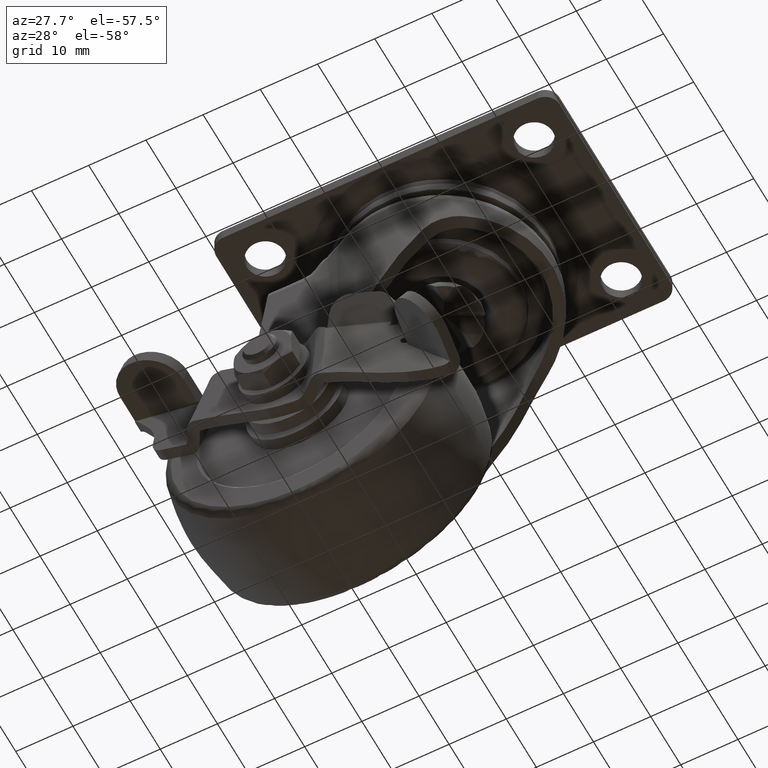
[diagram: clean part render]
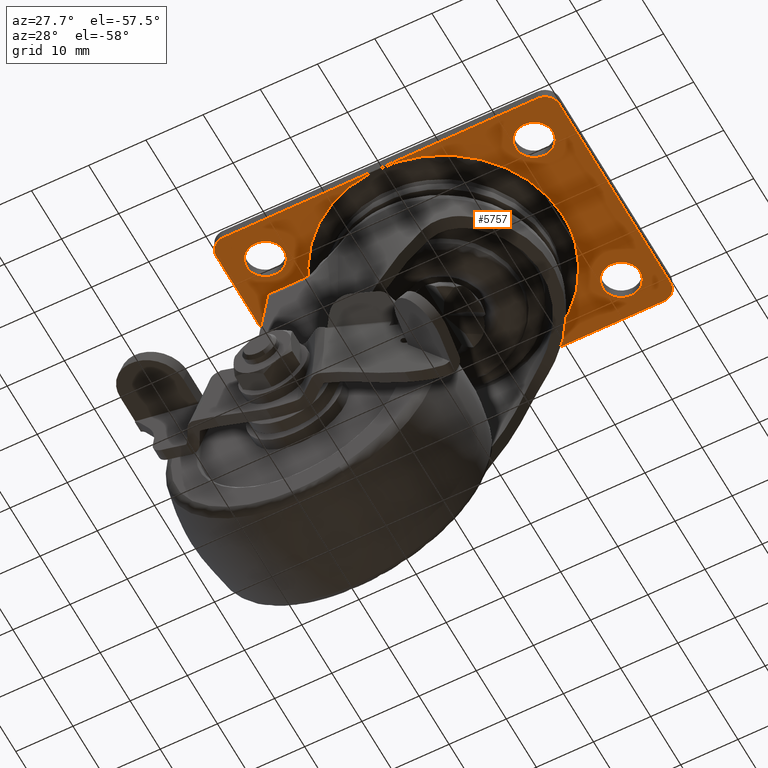
[diagram: same view with one face highlighted and labeled with its STEP entity id]
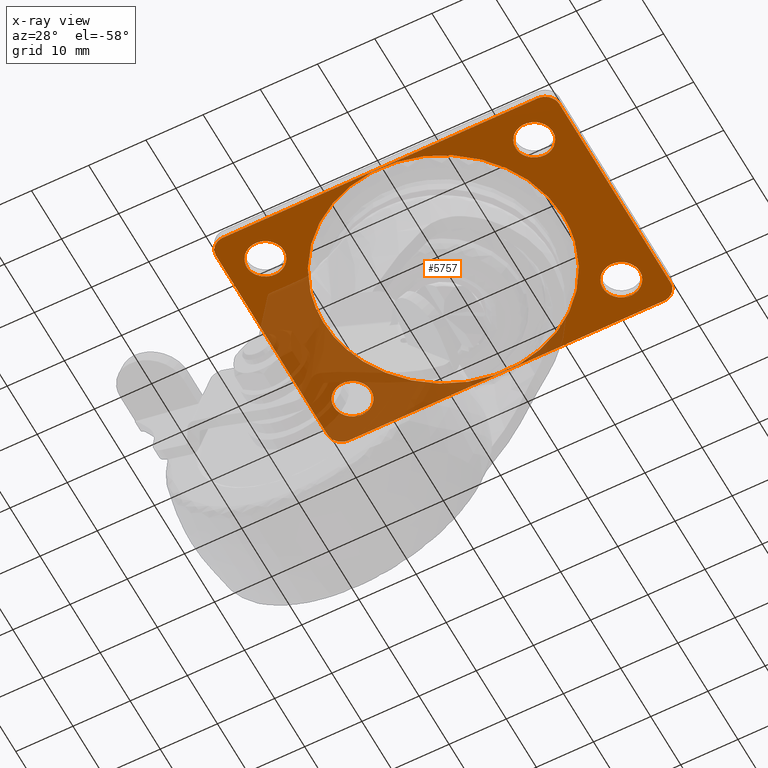
[diagram: x-ray of the same camera — body ghosted, the highlighted face saturated]
A machine part, auxiliary view. The second image highlights one B-rep face of the part: STEP entity #5757.
The next image is the same camera in x-ray: the body ghosted, the highlighted face saturated — about 33% of this face is hidden behind the body in this view.
In plain terms, the highlighted face is a freeform B-spline surface patch.
Its self-contained STEP definition (entity closure, byte-faithful):
#3788=CARTESIAN_POINT('',(-23.301599246305329,17.743938094858450,-1.999963000000160));
#3789=VERTEX_POINT('',#3788);
#3795=CARTESIAN_POINT('',(-20.250007000000000,14.500000000000000,-1.999963000000160));
#3796=VERTEX_POINT('',#3795);
#3797=CARTESIAN_POINT('',(-20.250007000000000,14.500000000000000,-1.999963000000160));
#3798=CARTESIAN_POINT('',(-20.250007000000000,17.557294717053782,-1.999963000000160));
#3799=CARTESIAN_POINT('',(-23.301599246305337,17.743938094858450,-1.999963000000160));
#3807=(BOUNDED_CURVE()B_SPLINE_CURVE(2,(#3797,#3798,#3799),.UNSPECIFIED.,.F.,.U.)B_SPLINE_CURVE_WITH_KNOTS((3,3),(0.500000000000000,0.739332962220014),.UNSPECIFIED.)CURVE()GEOMETRIC_REPRESENTATION_ITEM()RATIONAL_B_SPLINE_CURVE((1.0,0.719603993308887,0.976072041626148))REPRESENTATION_ITEM(''));
#3808=EDGE_CURVE('',#3796,#3789,#3807,.T.);
#3810=CARTESIAN_POINT('',(-23.883618262824260,11.272719039340650,-1.999963000000160));
#3811=VERTEX_POINT('',#3810);
#3812=CARTESIAN_POINT('',(-23.883618262824253,11.272719039340650,-1.999963000000160));
#3813=CARTESIAN_POINT('',(-23.692485389060511,11.250000000000004,-1.999963000000161));
#3814=CARTESIAN_POINT('',(-23.500007000000000,11.250000000000000,-1.999963000000160));
#3815=CARTESIAN_POINT('',(-20.250007000000007,11.250000000000000,-1.999963000000160));
#3816=CARTESIAN_POINT('',(-20.250007000000000,14.500000000000000,-1.999963000000160));
#3824=(BOUNDED_CURVE()B_SPLINE_CURVE(2,(#3812,#3813,#3814,#3815,#3816),.UNSPECIFIED.,.F.,.U.)B_SPLINE_CURVE_WITH_KNOTS((3,2,3),(0.229562473495766,0.250000000000000,0.500000000000000),.UNSPECIFIED.)CURVE()GEOMETRIC_REPRESENTATION_ITEM()RATIONAL_B_SPLINE_CURVE((0.956026754148924,0.976055948310359,1.0,0.707106781186547,1.0))REPRESENTATION_ITEM(''));
#3825=EDGE_CURVE('',#3811,#3796,#3824,.T.);
#3869=CARTESIAN_POINT('',(-26.750007000000000,14.500000000000000,-1.999963000000160));
#3870=VERTEX_POINT('',#3869);
#3871=CARTESIAN_POINT('',(-26.750007000000000,14.500000000000000,-1.999963000000160));
#3872=CARTESIAN_POINT('',(-26.750006999999993,11.613432790999958,-1.999963000000161));
#3873=CARTESIAN_POINT('',(-23.883618262824253,11.272719039340650,-1.999963000000160));
#3881=(BOUNDED_CURVE()B_SPLINE_CURVE(2,(#3871,#3872,#3873),.UNSPECIFIED.,.F.,.U.)B_SPLINE_CURVE_WITH_KNOTS((3,3),(0.0,0.229562473495766),.UNSPECIFIED.)CURVE()GEOMETRIC_REPRESENTATION_ITEM()RATIONAL_B_SPLINE_CURVE((1.0,0.731050832876189,0.956026754148924))REPRESENTATION_ITEM(''));
#3882=EDGE_CURVE('',#3870,#3811,#3881,.T.);
#3884=CARTESIAN_POINT('',(-23.301599246305326,17.743938094858446,-1.999963000000160));
#3885=CARTESIAN_POINT('',(-23.400710519072621,17.750000000000011,-1.999963000000160));
#3886=CARTESIAN_POINT('',(-23.500007000000000,17.750000000000000,-1.999963000000160));
#3887=CARTESIAN_POINT('',(-26.750006999999997,17.750000000000004,-1.999963000000160));
#3888=CARTESIAN_POINT('',(-26.750007000000000,14.500000000000000,-1.999963000000160));
#3896=(BOUNDED_CURVE()B_SPLINE_CURVE(2,(#3884,#3885,#3886,#3887,#3888),.UNSPECIFIED.,.F.,.U.)B_SPLINE_CURVE_WITH_KNOTS((3,2,3),(0.739332962220013,0.750000000000000,1.0),.UNSPECIFIED.)CURVE()GEOMETRIC_REPRESENTATION_ITEM()RATIONAL_B_SPLINE_CURVE((0.976072041626147,0.987502787877659,1.0,0.707106781186547,1.0))REPRESENTATION_ITEM(''));
#3897=EDGE_CURVE('',#3789,#3870,#3896,.T.);
#3974=CARTESIAN_POINT('',(23.698400753694671,17.743938094858450,-1.999963000000160));
#3975=VERTEX_POINT('',#3974);
#3981=CARTESIAN_POINT('',(26.749993000000000,14.500000000000000,-1.999963000000160));
#3982=VERTEX_POINT('',#3981);
#3983=CARTESIAN_POINT('',(26.749993000000000,14.500000000000000,-1.999963000000160));
#3984=CARTESIAN_POINT('',(26.749993000000000,17.557294717053782,-1.999963000000160));
#3985=CARTESIAN_POINT('',(23.698400753694667,17.743938094858450,-1.999963000000160));
#3993=(BOUNDED_CURVE()B_SPLINE_CURVE(2,(#3983,#3984,#3985),.UNSPECIFIED.,.F.,.U.)B_SPLINE_CURVE_WITH_KNOTS((3,3),(0.500000000000000,0.739332962220014),.UNSPECIFIED.)CURVE()GEOMETRIC_REPRESENTATION_ITEM()RATIONAL_B_SPLINE_CURVE((1.0,0.719603993308887,0.976072041626148))REPRESENTATION_ITEM(''));
#3994=EDGE_CURVE('',#3982,#3975,#3993,.T.);
#3996=CARTESIAN_POINT('',(23.116381737175740,11.272719039340650,-1.999963000000160));
#3997=VERTEX_POINT('',#3996);
#3998=CARTESIAN_POINT('',(23.116381737175743,11.272719039340654,-1.999963000000160));
#3999=CARTESIAN_POINT('',(23.307514610939492,11.250000000000004,-1.999963000000160));
#4000=CARTESIAN_POINT('',(23.499993000000000,11.250000000000000,-1.999963000000160));
#4001=CARTESIAN_POINT('',(26.749993000000003,11.250000000000000,-1.999963000000160));
#4002=CARTESIAN_POINT('',(26.749993000000000,14.500000000000000,-1.999963000000160));
#4010=(BOUNDED_CURVE()B_SPLINE_CURVE(2,(#3998,#3999,#4000,#4001,#4002),.UNSPECIFIED.,.F.,.U.)B_SPLINE_CURVE_WITH_KNOTS((3,2,3),(0.229562473495766,0.250000000000000,0.500000000000000),.UNSPECIFIED.)CURVE()GEOMETRIC_REPRESENTATION_ITEM()RATIONAL_B_SPLINE_CURVE((0.956026754148924,0.976055948310359,1.0,0.707106781186547,1.0))REPRESENTATION_ITEM(''));
#4011=EDGE_CURVE('',#3997,#3982,#4010,.T.);
#4055=CARTESIAN_POINT('',(20.249993000000000,14.500000000000000,-1.999963000000160));
#4056=VERTEX_POINT('',#4055);
#4057=CARTESIAN_POINT('',(20.249993000000000,14.500000000000000,-1.999963000000160));
#4058=CARTESIAN_POINT('',(20.249993000000003,11.613432790999960,-1.999963000000161));
#4059=CARTESIAN_POINT('',(23.116381737175740,11.272719039340652,-1.999963000000161));
#4067=(BOUNDED_CURVE()B_SPLINE_CURVE(2,(#4057,#4058,#4059),.UNSPECIFIED.,.F.,.U.)B_SPLINE_CURVE_WITH_KNOTS((3,3),(0.0,0.229562473495766),.UNSPECIFIED.)CURVE()GEOMETRIC_REPRESENTATION_ITEM()RATIONAL_B_SPLINE_CURVE((1.0,0.731050832876189,0.956026754148924))REPRESENTATION_ITEM(''));
#4068=EDGE_CURVE('',#4056,#3997,#4067,.T.);
#4070=CARTESIAN_POINT('',(23.698400753694674,17.743938094858446,-1.999963000000160));
#4071=CARTESIAN_POINT('',(23.599289480927375,17.750000000000011,-1.999963000000160));
#4072=CARTESIAN_POINT('',(23.499993000000000,17.750000000000000,-1.999963000000160));
#4073=CARTESIAN_POINT('',(20.249993000000003,17.750000000000004,-1.999963000000160));
#4074=CARTESIAN_POINT('',(20.249993000000000,14.500000000000000,-1.999963000000160));
#4082=(BOUNDED_CURVE()B_SPLINE_CURVE(2,(#4070,#4071,#4072,#4073,#4074),.UNSPECIFIED.,.F.,.U.)B_SPLINE_CURVE_WITH_KNOTS((3,2,3),(0.739332962220013,0.750000000000000,1.0),.UNSPECIFIED.)CURVE()GEOMETRIC_REPRESENTATION_ITEM()RATIONAL_B_SPLINE_CURVE((0.976072041626147,0.987502787877659,1.0,0.707106781186547,1.0))REPRESENTATION_ITEM(''));
#4083=EDGE_CURVE('',#3975,#4056,#4082,.T.);
#4355=CARTESIAN_POINT('',(-23.301599246305329,-11.256061905141561,-1.999963000000160));
#4356=VERTEX_POINT('',#4355);
#4362=CARTESIAN_POINT('',(-20.250007000000000,-14.500000000000000,-1.999963000000160));
#4363=VERTEX_POINT('',#4362);
#4364=CARTESIAN_POINT('',(-20.250007000000000,-14.500000000000000,-1.999963000000160));
#4365=CARTESIAN_POINT('',(-20.250007000000000,-11.442705282946225,-1.999963000000160));
#4366=CARTESIAN_POINT('',(-23.301599246305337,-11.256061905141554,-1.999963000000160));
#4374=(BOUNDED_CURVE()B_SPLINE_CURVE(2,(#4364,#4365,#4366),.UNSPECIFIED.,.F.,.U.)B_SPLINE_CURVE_WITH_KNOTS((3,3),(0.500000000000000,0.739332962220014),.UNSPECIFIED.)CURVE()GEOMETRIC_REPRESENTATION_ITEM()RATIONAL_B_SPLINE_CURVE((1.0,0.719603993308887,0.976072041626148))REPRESENTATION_ITEM(''));
#4375=EDGE_CURVE('',#4363,#4356,#4374,.T.);
#4377=CARTESIAN_POINT('',(-23.883618262824260,-17.727280960659360,-1.999963000000160));
#4378=VERTEX_POINT('',#4377);
#4379=CARTESIAN_POINT('',(-23.883618262824257,-17.727280960659350,-1.999963000000161));
#4380=CARTESIAN_POINT('',(-23.692485389060511,-17.749999999999996,-1.999963000000159));
#4381=CARTESIAN_POINT('',(-23.500007000000000,-17.750000000000000,-1.999963000000160));
#4382=CARTESIAN_POINT('',(-20.250007000000007,-17.750000000000004,-1.999963000000160));
#4383=CARTESIAN_POINT('',(-20.250007000000000,-14.500000000000000,-1.999963000000160));
#4391=(BOUNDED_CURVE()B_SPLINE_CURVE(2,(#4379,#4380,#4381,#4382,#4383),.UNSPECIFIED.,.F.,.U.)B_SPLINE_CURVE_WITH_KNOTS((3,2,3),(0.229562473495766,0.250000000000000,0.500000000000000),.UNSPECIFIED.)CURVE()GEOMETRIC_REPRESENTATION_ITEM()RATIONAL_B_SPLINE_CURVE((0.956026754148924,0.976055948310359,1.0,0.707106781186547,1.0))REPRESENTATION_ITEM(''));
#4392=EDGE_CURVE('',#4378,#4363,#4391,.T.);
#4436=CARTESIAN_POINT('',(-26.750007000000000,-14.500000000000000,-1.999963000000160));
#4437=VERTEX_POINT('',#4436);
#4438=CARTESIAN_POINT('',(-26.750007000000000,-14.500000000000000,-1.999963000000160));
#4439=CARTESIAN_POINT('',(-26.750006999999993,-17.386567209000042,-1.999963000000161));
#4440=CARTESIAN_POINT('',(-23.883618262824253,-17.727280960659360,-1.999963000000160));
#4448=(BOUNDED_CURVE()B_SPLINE_CURVE(2,(#4438,#4439,#4440),.UNSPECIFIED.,.F.,.U.)B_SPLINE_CURVE_WITH_KNOTS((3,3),(0.0,0.229562473495766),.UNSPECIFIED.)CURVE()GEOMETRIC_REPRESENTATION_ITEM()RATIONAL_B_SPLINE_CURVE((1.0,0.731050832876189,0.956026754148924))REPRESENTATION_ITEM(''));
#4449=EDGE_CURVE('',#4437,#4378,#4448,.T.);
#4451=CARTESIAN_POINT('',(-23.301599246305326,-11.256061905141555,-1.999963000000160));
#4452=CARTESIAN_POINT('',(-23.400710519072621,-11.250000000000004,-1.999963000000160));
#4453=CARTESIAN_POINT('',(-23.500007000000000,-11.250000000000000,-1.999963000000160));
#4454=CARTESIAN_POINT('',(-26.750006999999997,-11.250000000000000,-1.999963000000160));
#4455=CARTESIAN_POINT('',(-26.750007000000000,-14.500000000000000,-1.999963000000160));
#4463=(BOUNDED_CURVE()B_SPLINE_CURVE(2,(#4451,#4452,#4453,#4454,#4455),.UNSPECIFIED.,.F.,.U.)B_SPLINE_CURVE_WITH_KNOTS((3,2,3),(0.739332962220013,0.750000000000000,1.0),.UNSPECIFIED.)CURVE()GEOMETRIC_REPRESENTATION_ITEM()RATIONAL_B_SPLINE_CURVE((0.976072041626147,0.987502787877659,1.0,0.707106781186547,1.0))REPRESENTATION_ITEM(''));
#4464=EDGE_CURVE('',#4356,#4437,#4463,.T.);
#4541=CARTESIAN_POINT('',(23.698400753694671,-11.256061905141561,-1.999963000000161));
#4542=VERTEX_POINT('',#4541);
#4548=CARTESIAN_POINT('',(26.749993000000000,-14.500000000000000,-1.999963000000160));
#4549=VERTEX_POINT('',#4548);
#4550=CARTESIAN_POINT('',(26.749993000000000,-14.500000000000000,-1.999963000000160));
#4551=CARTESIAN_POINT('',(26.749993000000000,-11.442705282946225,-1.999963000000160));
#4552=CARTESIAN_POINT('',(23.698400753694667,-11.256061905141554,-1.999963000000160));
#4560=(BOUNDED_CURVE()B_SPLINE_CURVE(2,(#4550,#4551,#4552),.UNSPECIFIED.,.F.,.U.)B_SPLINE_CURVE_WITH_KNOTS((3,3),(0.500000000000000,0.739332962220014),.UNSPECIFIED.)CURVE()GEOMETRIC_REPRESENTATION_ITEM()RATIONAL_B_SPLINE_CURVE((1.0,0.719603993308887,0.976072041626148))REPRESENTATION_ITEM(''));
#4561=EDGE_CURVE('',#4549,#4542,#4560,.T.);
#4563=CARTESIAN_POINT('',(23.116381737175740,-17.727280960659360,-1.999963000000160));
#4564=VERTEX_POINT('',#4563);
#4565=CARTESIAN_POINT('',(23.116381737175740,-17.727280960659357,-1.999963000000160));
#4566=CARTESIAN_POINT('',(23.307514610939492,-17.750000000000000,-1.999963000000160));
#4567=CARTESIAN_POINT('',(23.499993000000000,-17.750000000000000,-1.999963000000160));
#4568=CARTESIAN_POINT('',(26.749993000000003,-17.750000000000004,-1.999963000000160));
#4569=CARTESIAN_POINT('',(26.749993000000000,-14.500000000000000,-1.999963000000160));
#4577=(BOUNDED_CURVE()B_SPLINE_CURVE(2,(#4565,#4566,#4567,#4568,#4569),.UNSPECIFIED.,.F.,.U.)B_SPLINE_CURVE_WITH_KNOTS((3,2,3),(0.229562473495766,0.250000000000000,0.500000000000000),.UNSPECIFIED.)CURVE()GEOMETRIC_REPRESENTATION_ITEM()RATIONAL_B_SPLINE_CURVE((0.956026754148924,0.976055948310359,1.0,0.707106781186547,1.0))REPRESENTATION_ITEM(''));
#4578=EDGE_CURVE('',#4564,#4549,#4577,.T.);
#4622=CARTESIAN_POINT('',(20.249993000000000,-14.500000000000000,-1.999963000000160));
#4623=VERTEX_POINT('',#4622);
#4624=CARTESIAN_POINT('',(20.249993000000000,-14.500000000000000,-1.999963000000160));
#4625=CARTESIAN_POINT('',(20.249993000000000,-17.386567209000038,-1.999963000000160));
#4626=CARTESIAN_POINT('',(23.116381737175736,-17.727280960659353,-1.999963000000160));
#4634=(BOUNDED_CURVE()B_SPLINE_CURVE(2,(#4624,#4625,#4626),.UNSPECIFIED.,.F.,.U.)B_SPLINE_CURVE_WITH_KNOTS((3,3),(0.0,0.229562473495766),.UNSPECIFIED.)CURVE()GEOMETRIC_REPRESENTATION_ITEM()RATIONAL_B_SPLINE_CURVE((1.0,0.731050832876189,0.956026754148924))REPRESENTATION_ITEM(''));
#4635=EDGE_CURVE('',#4623,#4564,#4634,.T.);
#4637=CARTESIAN_POINT('',(23.698400753694674,-11.256061905141561,-1.999963000000161));
#4638=CARTESIAN_POINT('',(23.599289480927382,-11.250000000000002,-1.999963000000160));
#4639=CARTESIAN_POINT('',(23.499993000000000,-11.250000000000000,-1.999963000000160));
#4640=CARTESIAN_POINT('',(20.249993000000003,-11.250000000000000,-1.999963000000160));
#4641=CARTESIAN_POINT('',(20.249993000000000,-14.500000000000000,-1.999963000000160));
#4649=(BOUNDED_CURVE()B_SPLINE_CURVE(2,(#4637,#4638,#4639,#4640,#4641),.UNSPECIFIED.,.F.,.U.)B_SPLINE_CURVE_WITH_KNOTS((3,2,3),(0.739332962220013,0.750000000000000,1.0),.UNSPECIFIED.)CURVE()GEOMETRIC_REPRESENTATION_ITEM()RATIONAL_B_SPLINE_CURVE((0.976072041626147,0.987502787877659,1.0,0.707106781186547,1.0))REPRESENTATION_ITEM(''));
#4650=EDGE_CURVE('',#4542,#4623,#4649,.T.);
#5285=CARTESIAN_POINT('',(10.236818833725369,18.317631878213419,-1.999963000041348));
#5286=VERTEX_POINT('',#5285);
#5300=CARTESIAN_POINT('',(20.983996222386399,7.105427E-015,-1.999963000000205));
#5301=VERTEX_POINT('',#5300);
#5302=CARTESIAN_POINT('',(10.236818833725366,18.317631878213415,-1.999963000041348));
#5303=CARTESIAN_POINT('',(20.983996222386406,12.311565775706182,-1.999963000000204));
#5304=CARTESIAN_POINT('',(20.983996222386399,7.105427E-015,-1.999963000000205));
#5312=(BOUNDED_CURVE()B_SPLINE_CURVE(2,(#5302,#5303,#5304),.UNSPECIFIED.,.F.,.U.)B_SPLINE_CURVE_WITH_KNOTS((3,3),(0.333121442957282,0.500000000000000),.UNSPECIFIED.)CURVE()GEOMETRIC_REPRESENTATION_ITEM()RATIONAL_B_SPLINE_CURVE((0.869991153566823,0.804489609107256,1.0))REPRESENTATION_ITEM(''));
#5313=EDGE_CURVE('',#5286,#5301,#5312,.T.);
#5315=CARTESIAN_POINT('',(-20.983996222386399,7.105427E-015,-1.999963000000205));
#5316=VERTEX_POINT('',#5315);
#5317=CARTESIAN_POINT('',(20.983996222386399,7.105427E-015,-1.999963000000205));
#5318=CARTESIAN_POINT('',(20.983996222386402,-20.983996222386388,-1.999963000000205));
#5319=CARTESIAN_POINT('',(0.0,-20.983996222386391,-1.999963000000205));
#5320=CARTESIAN_POINT('',(-20.983996222386402,-20.983996222386388,-1.999963000000205));
#5321=CARTESIAN_POINT('',(-20.983996222386399,7.105427E-015,-1.999963000000205));
#5329=(BOUNDED_CURVE()B_SPLINE_CURVE(2,(#5317,#5318,#5319,#5320,#5321),.UNSPECIFIED.,.F.,.U.)B_SPLINE_CURVE_WITH_KNOTS((3,2,3),(0.500000000000000,0.750000000000000,1.0),.UNSPECIFIED.)CURVE()GEOMETRIC_REPRESENTATION_ITEM()RATIONAL_B_SPLINE_CURVE((1.0,0.707106781186547,1.0,0.707106781186547,1.0))REPRESENTATION_ITEM(''));
#5330=EDGE_CURVE('',#5301,#5316,#5329,.T.);
#5332=CARTESIAN_POINT('',(-18.873116400639208,9.172435596194667,-1.999963001071962));
#5333=VERTEX_POINT('',#5332);
#5334=CARTESIAN_POINT('',(-20.983996222386399,7.105427E-015,-1.999963000000205));
#5335=CARTESIAN_POINT('',(-20.983996222386402,4.829109316831011,-1.999963000000205));
#5336=CARTESIAN_POINT('',(-18.873116400639212,9.172435596194667,-1.999963001071962));
#5344=(BOUNDED_CURVE()B_SPLINE_CURVE(2,(#5334,#5335,#5336),.UNSPECIFIED.,.F.,.U.)B_SPLINE_CURVE_WITH_KNOTS((3,3),(0.0,0.074283295451411),.UNSPECIFIED.)CURVE()GEOMETRIC_REPRESENTATION_ITEM()RATIONAL_B_SPLINE_CURVE((1.0,0.912971705964662,0.877661399756998))REPRESENTATION_ITEM(''));
#5345=EDGE_CURVE('',#5316,#5333,#5344,.T.);
#5434=CARTESIAN_POINT('',(-18.873116400639212,9.172435596194667,-1.999963001071962));
#5435=CARTESIAN_POINT('',(-13.132634710853610,20.983996222386399,-1.999963000000205));
#5436=CARTESIAN_POINT('',(0.0,20.983996222386409,-1.999963000000205));
#5437=CARTESIAN_POINT('',(5.465660791143042,20.983996222386413,-1.999963000000205));
#5438=CARTESIAN_POINT('',(10.236818833725366,18.317631878213415,-1.999963000041348));
#5446=(BOUNDED_CURVE()B_SPLINE_CURVE(2,(#5434,#5435,#5436,#5437,#5438),.UNSPECIFIED.,.F.,.U.)B_SPLINE_CURVE_WITH_KNOTS((3,2,3),(0.074283295451411,0.250000000000000,0.333121442957282),.UNSPECIFIED.)CURVE()GEOMETRIC_REPRESENTATION_ITEM()RATIONAL_B_SPLINE_CURVE((0.877661399756998,0.794135075221886,1.0,0.902617172079292,0.869991153566823))REPRESENTATION_ITEM(''));
#5447=EDGE_CURVE('',#5333,#5286,#5446,.T.);
#5632=CARTESIAN_POINT('',(-32.997008010182597,23.097899918595861,-1.999963000000205));
#5633=CARTESIAN_POINT('',(32.996994546624308,23.097899918595861,-1.999963000000205));
#5634=CARTESIAN_POINT('',(-32.997008010182597,-23.097901045123638,-1.999963000000205));
#5635=CARTESIAN_POINT('',(32.996994546624308,-23.097901045123638,-1.999963000000205));
#5636=B_SPLINE_SURFACE_WITH_KNOTS('',1,1,((#5632,#5634),(#5633,#5635)),.UNSPECIFIED.,.F.,.F.,.U.,(2,2),(2,2),(0.0,65.994002556806919),(0.0,46.195800963719492),.UNSPECIFIED.);
#5637=CARTESIAN_POINT('',(29.999993000000000,18.500000000000000,-1.999963000000160));
#5638=VERTEX_POINT('',#5637);
#5639=CARTESIAN_POINT('',(27.499993000000000,21.0,-1.999963000000160));
#5640=VERTEX_POINT('',#5639);
#5641=CARTESIAN_POINT('',(29.999993000000000,18.500000000000000,-1.999963000000160));
#5642=CARTESIAN_POINT('',(29.999993000000000,21.000000000000004,-1.999963000000159));
#5643=CARTESIAN_POINT('',(27.499993000000000,21.0,-1.999963000000160));
#5651=(BOUNDED_CURVE()B_SPLINE_CURVE(2,(#5641,#5642,#5643),.UNSPECIFIED.,.F.,.U.)CURVE()GEOMETRIC_REPRESENTATION_ITEM()QUASI_UNIFORM_CURVE()RATIONAL_B_SPLINE_CURVE((1.0,0.707106781186548,1.0))REPRESENTATION_ITEM(''));
#5652=EDGE_CURVE('',#5638,#5640,#5651,.T.);
#5653=ORIENTED_EDGE('',*,*,#5652,.F.);
#5654=CARTESIAN_POINT('',(29.999993000000000,-18.500000000000000,-1.999963000000160));
#5655=VERTEX_POINT('',#5654);
#5656=CARTESIAN_POINT('',(29.999993000000000,-18.500000000000000,-1.999963000000160));
#5657=CARTESIAN_POINT('',(29.999993000000000,18.500000000000000,-1.999963000000160));
#5658=QUASI_UNIFORM_CURVE('',1,(#5656,#5657),.UNSPECIFIED.,.F.,.U.);
#5659=EDGE_CURVE('',#5655,#5638,#5658,.T.);
#5660=ORIENTED_EDGE('',*,*,#5659,.F.);
#5661=CARTESIAN_POINT('',(27.499993000000000,-21.0,-1.999963000000160));
#5662=VERTEX_POINT('',#5661);
#5663=CARTESIAN_POINT('',(27.499993000000000,-21.0,-1.999963000000160));
#5664=CARTESIAN_POINT('',(29.999993000000000,-21.000000000000004,-1.999963000000159));
#5665=CARTESIAN_POINT('',(29.999993000000000,-18.500000000000000,-1.999963000000160));
#5673=(BOUNDED_CURVE()B_SPLINE_CURVE(2,(#5663,#5664,#5665),.UNSPECIFIED.,.F.,.U.)CURVE()GEOMETRIC_REPRESENTATION_ITEM()QUASI_UNIFORM_CURVE()RATIONAL_B_SPLINE_CURVE((1.0,0.707106781186548,1.0))REPRESENTATION_ITEM(''));
#5674=EDGE_CURVE('',#5662,#5655,#5673,.T.);
#5675=ORIENTED_EDGE('',*,*,#5674,.F.);
#5676=CARTESIAN_POINT('',(-27.500007000000100,-21.0,-1.999963000000160));
#5677=VERTEX_POINT('',#5676);
#5678=CARTESIAN_POINT('',(-27.500007000000100,-21.0,-1.999963000000160));
#5679=CARTESIAN_POINT('',(27.499993000000000,-21.0,-1.999963000000160));
#5680=QUASI_UNIFORM_CURVE('',1,(#5678,#5679),.UNSPECIFIED.,.F.,.U.);
#5681=EDGE_CURVE('',#5677,#5662,#5680,.T.);
#5682=ORIENTED_EDGE('',*,*,#5681,.F.);
#5683=CARTESIAN_POINT('',(-30.000007000000000,-18.500000000000000,-1.999963000000160));
#5684=VERTEX_POINT('',#5683);
#5685=CARTESIAN_POINT('',(-30.000007000000100,-18.500000000000000,-1.999963000000160));
#5686=CARTESIAN_POINT('',(-30.000007000000107,-21.000000000000004,-1.999963000000159));
#5687=CARTESIAN_POINT('',(-27.500007000000100,-21.0,-1.999963000000160));
#5695=(BOUNDED_CURVE()B_SPLINE_CURVE(2,(#5685,#5686,#5687),.UNSPECIFIED.,.F.,.U.)CURVE()GEOMETRIC_REPRESENTATION_ITEM()QUASI_UNIFORM_CURVE()RATIONAL_B_SPLINE_CURVE((1.0,0.707106781186548,1.0))REPRESENTATION_ITEM(''));
#5696=EDGE_CURVE('',#5684,#5677,#5695,.T.);
#5697=ORIENTED_EDGE('',*,*,#5696,.F.);
#5698=CARTESIAN_POINT('',(-30.000007000000100,18.500000000000000,-1.999963000000160));
#5699=VERTEX_POINT('',#5698);
#5700=CARTESIAN_POINT('',(-30.000007000000100,18.500000000000000,-1.999963000000160));
#5701=CARTESIAN_POINT('',(-30.000007000000000,-18.500000000000000,-1.999963000000160));
#5702=QUASI_UNIFORM_CURVE('',1,(#5700,#5701),.UNSPECIFIED.,.F.,.U.);
#5703=EDGE_CURVE('',#5699,#5684,#5702,.T.);
#5704=ORIENTED_EDGE('',*,*,#5703,.F.);
#5705=CARTESIAN_POINT('',(-27.500007000000100,21.0,-1.999963000000160));
#5706=VERTEX_POINT('',#5705);
#5707=CARTESIAN_POINT('',(-27.500007000000100,21.0,-1.999963000000160));
#5708=CARTESIAN_POINT('',(-30.000007000000107,21.000000000000004,-1.999963000000159));
#5709=CARTESIAN_POINT('',(-30.000007000000100,18.500000000000000,-1.999963000000160));
#5717=(BOUNDED_CURVE()B_SPLINE_CURVE(2,(#5707,#5708,#5709),.UNSPECIFIED.,.F.,.U.)CURVE()GEOMETRIC_REPRESENTATION_ITEM()QUASI_UNIFORM_CURVE()RATIONAL_B_SPLINE_CURVE((1.0,0.707106781186548,1.0))REPRESENTATION_ITEM(''));
#5718=EDGE_CURVE('',#5706,#5699,#5717,.T.);
#5719=ORIENTED_EDGE('',*,*,#5718,.F.);
#5720=CARTESIAN_POINT('',(27.499993000000000,21.0,-1.999963000000160));
#5721=CARTESIAN_POINT('',(-27.500007000000100,21.0,-1.999963000000160));
#5722=QUASI_UNIFORM_CURVE('',1,(#5720,#5721),.UNSPECIFIED.,.F.,.U.);
#5723=EDGE_CURVE('',#5640,#5706,#5722,.T.);
#5724=ORIENTED_EDGE('',*,*,#5723,.F.);
#5725=EDGE_LOOP('',(#5653,#5660,#5675,#5682,#5697,#5704,#5719,#5724));
#5726=FACE_OUTER_BOUND('',#5725,.T.);
#5727=ORIENTED_EDGE('',*,*,#5330,.F.);
#5728=ORIENTED_EDGE('',*,*,#5313,.F.);
#5729=ORIENTED_EDGE('',*,*,#5447,.F.);
#5730=ORIENTED_EDGE('',*,*,#5345,.F.);
#5731=EDGE_LOOP('',(#5727,#5728,#5729,#5730));
#5732=FACE_BOUND('',#5731,.T.);
#5733=ORIENTED_EDGE('',*,*,#4561,.T.);
#5734=ORIENTED_EDGE('',*,*,#4650,.T.);
#5735=ORIENTED_EDGE('',*,*,#4635,.T.);
#5736=ORIENTED_EDGE('',*,*,#4578,.T.);
#5737=EDGE_LOOP('',(#5733,#5734,#5735,#5736));
#5738=FACE_BOUND('',#5737,.T.);
#5739=ORIENTED_EDGE('',*,*,#4375,.T.);
#5740=ORIENTED_EDGE('',*,*,#4464,.T.);
#5741=ORIENTED_EDGE('',*,*,#4449,.T.);
#5742=ORIENTED_EDGE('',*,*,#4392,.T.);
#5743=EDGE_LOOP('',(#5739,#5740,#5741,#5742));
#5744=FACE_BOUND('',#5743,.T.);
#5745=ORIENTED_EDGE('',*,*,#3994,.T.);
#5746=ORIENTED_EDGE('',*,*,#4083,.T.);
#5747=ORIENTED_EDGE('',*,*,#4068,.T.);
#5748=ORIENTED_EDGE('',*,*,#4011,.T.);
#5749=EDGE_LOOP('',(#5745,#5746,#5747,#5748));
#5750=FACE_BOUND('',#5749,.T.);
#5751=ORIENTED_EDGE('',*,*,#3808,.T.);
#5752=ORIENTED_EDGE('',*,*,#3897,.T.);
#5753=ORIENTED_EDGE('',*,*,#3882,.T.);
#5754=ORIENTED_EDGE('',*,*,#3825,.T.);
#5755=EDGE_LOOP('',(#5751,#5752,#5753,#5754));
#5756=FACE_BOUND('',#5755,.T.);
#5757=ADVANCED_FACE('',(#5726,#5732,#5738,#5744,#5750,#5756),#5636,.T.);